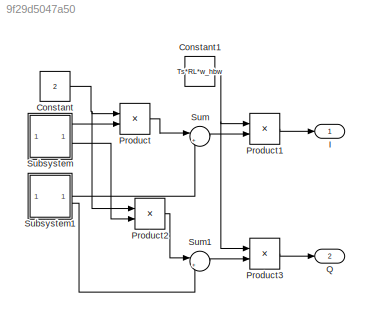
MODEL slx_9f29d5047a50
KIND model
CONFIG AbsTol = auto
CONFIG EnableMultiTasking = off
CONFIG FixedStep = auto
CONFIG MaxStep = auto
CONFIG MinStep = auto
CONFIG RelTol = 1e-3
CONFIG SampleTimeConstraint = Unconstrained
CONFIG SolverName = VariableStepAuto
CONFIG StartTime = 0.0
CONFIG StopTime = 10.0
WORKSPACE source: mxarray member
WORKSPACE QL: Simulink.Parameter (value not decoded)
WORKSPACE RL: Simulink.Parameter (value not decoded)
WORKSPACE RQ: Simulink.Parameter (value not decoded)
WORKSPACE Ts: Simulink.Parameter (value not decoded)
WORKSPACE f0: Simulink.Parameter (value not decoded)
WORKSPACE w_hbw: Simulink.Parameter (value not decoded)
BLOCK [Constant] Constant
  Value = 2
BLOCK [Constant] Constant1
  Value = Ts*RL*w_hbw
BLOCK [Outport] I
BLOCK [Product] Product
BLOCK [Product] Product1
BLOCK [Product] Product2
BLOCK [Product] Product3
BLOCK [Outport] Q
  Port = 2
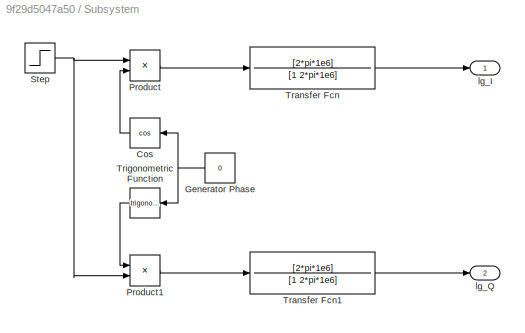
BLOCK [SubSystem] Subsystem
BLOCK [Trigonometry] Subsystem/Cos
  Operator = cos
BLOCK [Constant] Subsystem/Generator Phase
  Value = 0
BLOCK [Product] Subsystem/Product
BLOCK [Product] Subsystem/Product1
BLOCK [Step] Subsystem/Step
  SampleTime = 0
BLOCK [TransferFcn] Subsystem/Transfer Fcn
  Denominator = [1 2*pi*1e6]
  Numerator = [2*pi*1e6]
BLOCK [TransferFcn] Subsystem/Transfer Fcn1
  Denominator = [1 2*pi*1e6]
  Numerator = [2*pi*1e6]
BLOCK [Trigonometry] Subsystem/Trigonometric Function
BLOCK [Outport] Subsystem/lg_I
BLOCK [Outport] Subsystem/lg_Q
  Port = 2
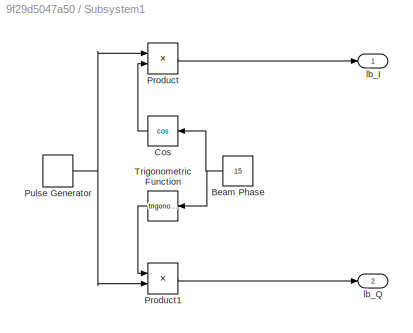
BLOCK [SubSystem] Subsystem1
BLOCK [Constant] Subsystem1/Beam Phase
  Value = 15
BLOCK [Trigonometry] Subsystem1/Cos
  Operator = cos
BLOCK [Product] Subsystem1/Product
BLOCK [Product] Subsystem1/Product1
BLOCK [DiscretePulseGenerator] Subsystem1/Pulse Generator
  Period = 0.04
  PulseType = Time based
  PulseWidth = 5
BLOCK [Trigonometry] Subsystem1/Trigonometric Function
BLOCK [Outport] Subsystem1/lb_I
BLOCK [Outport] Subsystem1/lb_Q
  Port = 2
BLOCK [Sum] Sum
  Inputs = |+-
BLOCK [Sum] Sum1
  Inputs = |+-
NET Constant1:1 -> Product1:1, Product3:1
NET Constant:1 -> Product2:1, Product:1
LINE Product1:1 -> I:1
LINE Product2:1 -> Sum1:1
LINE Product3:1 -> Q:1
LINE Product:1 -> Sum:1
LINE Subsystem/Cos:1 -> Subsystem/Product:2
NET Subsystem/Generator Phase:1 -> Subsystem/Cos:1, Subsystem/Trigonometric Function:1
LINE Subsystem/Product1:1 -> Subsystem/Transfer Fcn1:1
LINE Subsystem/Product:1 -> Subsystem/Transfer Fcn:1
NET Subsystem/Step:1 -> Subsystem/Product1:2, Subsystem/Product:1
LINE Subsystem/Transfer Fcn1:1 -> Subsystem/lg_Q:1
LINE Subsystem/Transfer Fcn:1 -> Subsystem/lg_I:1
LINE Subsystem/Trigonometric Function:1 -> Subsystem/Product1:1
NET Subsystem1/Beam Phase:1 -> Subsystem1/Cos:1, Subsystem1/Trigonometric Function:1
LINE Subsystem1/Cos:1 -> Subsystem1/Product:2
LINE Subsystem1/Product1:1 -> Subsystem1/lb_Q:1
LINE Subsystem1/Product:1 -> Subsystem1/lb_I:1
NET Subsystem1/Pulse Generator:1 -> Subsystem1/Product1:2, Subsystem1/Product:1
LINE Subsystem1/Trigonometric Function:1 -> Subsystem1/Product1:1
LINE Subsystem1:1 -> Sum:2
LINE Subsystem1:2 -> Sum1:2
LINE Subsystem:1 -> Product:2
LINE Subsystem:2 -> Product2:2
LINE Sum1:1 -> Product3:2
LINE Sum:1 -> Product1:2
note: NET lines group one-source signal fan-out (src -> all destinations, sorted); 1:1 wires keep LINE
